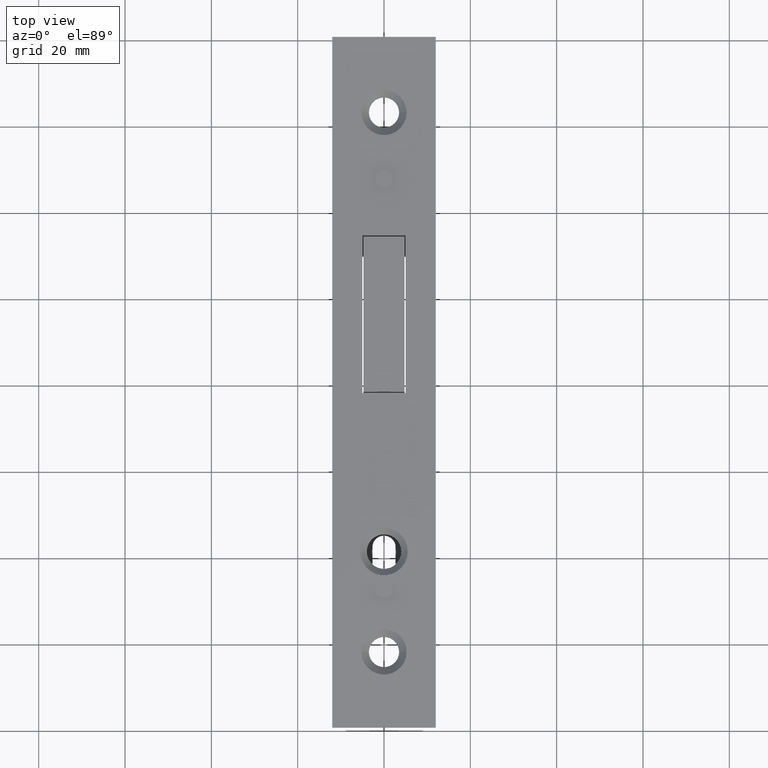
[diagram: clean part render]
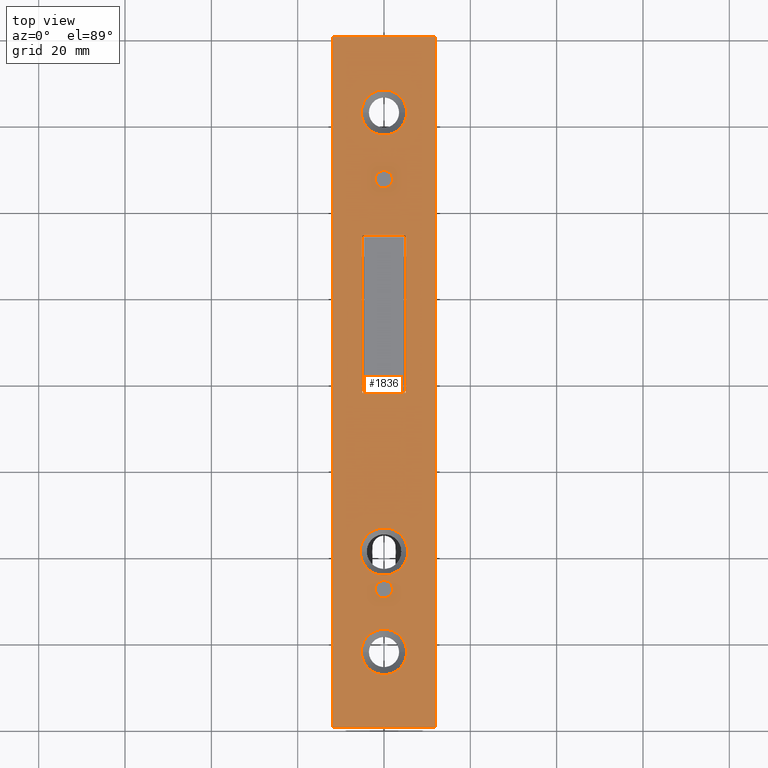
[diagram: same view with one face highlighted and labeled with its STEP entity id]
A machine part, top view. The second image highlights one B-rep face of the part: STEP entity #1836.
In plain terms, the highlighted planar face has unit normal (-0, 0, 1).
Its self-contained STEP definition (entity closure, byte-faithful):
#33 = DIRECTION ( 'NONE',  ( 1.000000000000000000, 0.000000000000000000, 0.000000000000000000 ) ) ;
#148 = CARTESIAN_POINT ( 'NONE',  ( -1.040834085586084257E-14, -39.25000000000000711, 3.000000000000000000 ) ) ;
#207 = DIRECTION ( 'NONE',  ( -0.000000000000000000, 0.000000000000000000, 1.000000000000000000 ) ) ;
#239 = DIRECTION ( 'NONE',  ( 0.000000000000000000, 0.000000000000000000, 1.000000000000000000 ) ) ;
#260 = ORIENTED_EDGE ( 'NONE', *, *, #14203, .F. ) ;
#469 = EDGE_LOOP ( 'NONE', ( #9762, #9043 ) ) ;
#878 = ORIENTED_EDGE ( 'NONE', *, *, #15162, .F. ) ;
#892 = EDGE_CURVE ( 'NONE', #12134, #1654, #14362, .T. ) ;
#906 = ORIENTED_EDGE ( 'NONE', *, *, #2468, .T. ) ;
#949 = VERTEX_POINT ( 'NONE', #4127 ) ;
#1146 = DIRECTION ( 'NONE',  ( 1.000000000000000000, 0.000000000000000000, 0.000000000000000000 ) ) ;
#1241 = ORIENTED_EDGE ( 'NONE', *, *, #6608, .F. ) ;
#1249 = DIRECTION ( 'NONE',  ( 0.000000000000000000, 0.000000000000000000, 1.000000000000000000 ) ) ;
#1322 = CARTESIAN_POINT ( 'NONE',  ( 1.561424668912875348E-14, 62.50000000000000000, 3.000000000000000000 ) ) ;
#1379 = LINE ( 'NONE', #3114, #9685 ) ;
#1505 = EDGE_LOOP ( 'NONE', ( #6075, #15910 ) ) ;
#1629 = VERTEX_POINT ( 'NONE', #7086 ) ;
#1654 = VERTEX_POINT ( 'NONE', #9965 ) ;
#1795 = AXIS2_PLACEMENT_3D ( 'NONE', #8319, #207, #4109 ) ;
#1804 = EDGE_LOOP ( 'NONE', ( #878, #260 ) ) ;
#1836 = ADVANCED_FACE ( 'NONE', ( #10288, #13704, #15806, #6225, #11126, #9867, #7502 ), #2995, .T. ) ;
#2041 = VERTEX_POINT ( 'NONE', #10094 ) ;
#2073 = CARTESIAN_POINT ( 'NONE',  ( 2.000000000000001776, -48.00000000000000000, 3.000000000000000000 ) ) ;
#2332 = VERTEX_POINT ( 'NONE', #2637 ) ;
#2468 = EDGE_CURVE ( 'NONE', #2332, #6261, #13891, .T. ) ;
#2574 = CARTESIAN_POINT ( 'NONE',  ( 1.561424668912875348E-14, -62.50000000000000000, 3.000000000000000000 ) ) ;
#2590 = AXIS2_PLACEMENT_3D ( 'NONE', #2574, #5231, #12185 ) ;
#2616 = DIRECTION ( 'NONE',  ( 1.000000000000000000, 0.000000000000000000, 0.000000000000000000 ) ) ;
#2634 = CARTESIAN_POINT ( 'NONE',  ( 1.561424668912875348E-14, -62.50000000000000000, 3.000000000000000000 ) ) ;
#2637 = CARTESIAN_POINT ( 'NONE',  ( 11.99999999999998579, 80.00000000000000000, 3.000000000000000000 ) ) ;
#2692 = VERTEX_POINT ( 'NONE', #11416 ) ;
#2840 = AXIS2_PLACEMENT_3D ( 'NONE', #5335, #1249, #2616 ) ;
#2842 = EDGE_CURVE ( 'NONE', #10231, #11692, #13672, .T. ) ;
#2995 = PLANE ( 'NONE',  #1795 ) ;
#2996 = CARTESIAN_POINT ( 'NONE',  ( 11.99999999999998579, 80.00000000000000000, 3.000000000000000000 ) ) ;
#3003 = DIRECTION ( 'NONE',  ( 1.000000000000000000, 0.000000000000000000, 0.000000000000000000 ) ) ;
#3085 = VECTOR ( 'NONE', #10852, 1000.000000000000000 ) ;
#3114 = CARTESIAN_POINT ( 'NONE',  ( -11.99999999999999112, -80.00000000000000000, 3.000000000000000000 ) ) ;
#3468 = VECTOR ( 'NONE', #7058, 1000.000000000000000 ) ;
#3548 = DIRECTION ( 'NONE',  ( 1.000000000000000000, 0.000000000000000000, 0.000000000000000000 ) ) ;
#3737 = ORIENTED_EDGE ( 'NONE', *, *, #10906, .F. ) ;
#4001 = DIRECTION ( 'NONE',  ( 0.000000000000000000, -0.000000000000000000, -1.000000000000000000 ) ) ;
#4092 = VECTOR ( 'NONE', #11067, 1000.000000000000000 ) ;
#4109 = DIRECTION ( 'NONE',  ( 1.000000000000000000, 0.000000000000000000, 0.000000000000000000 ) ) ;
#4127 = CARTESIAN_POINT ( 'NONE',  ( -5.249999999999986677, 62.50000000000000000, 3.000000000000000000 ) ) ;
#4139 = DIRECTION ( 'NONE',  ( 1.000000000000000000, 0.000000000000000000, 0.000000000000000000 ) ) ;
#4284 = EDGE_CURVE ( 'NONE', #949, #10618, #11618, .T. ) ;
#4466 = CARTESIAN_POINT ( 'NONE',  ( 4.999999999999970690, 33.99999999999998579, 3.000000000000000000 ) ) ;
#4622 = ORIENTED_EDGE ( 'NONE', *, *, #892, .F. ) ;
#4655 = EDGE_LOOP ( 'NONE', ( #14720, #3737, #4622, #11298 ) ) ;
#4803 = AXIS2_PLACEMENT_3D ( 'NONE', #8499, #11171, #15463 ) ;
#4826 = CIRCLE ( 'NONE', #2590, 5.250000000000001776 ) ;
#4847 = DIRECTION ( 'NONE',  ( 0.000000000000000000, 0.000000000000000000, 1.000000000000000000 ) ) ;
#4945 = AXIS2_PLACEMENT_3D ( 'NONE', #5010, #11683, #10323 ) ;
#5010 = CARTESIAN_POINT ( 'NONE',  ( -1.040834085586084257E-14, -39.25000000000000711, 3.000000000000000000 ) ) ;
#5211 = AXIS2_PLACEMENT_3D ( 'NONE', #1322, #5396, #33 ) ;
#5231 = DIRECTION ( 'NONE',  ( 0.000000000000000000, -0.000000000000000000, -1.000000000000000000 ) ) ;
#5335 = CARTESIAN_POINT ( 'NONE',  ( 0.000000000000000000, 47.00000000000000000, 3.000000000000000000 ) ) ;
#5396 = DIRECTION ( 'NONE',  ( 0.000000000000000000, -0.000000000000000000, -1.000000000000000000 ) ) ;
#5521 = CARTESIAN_POINT ( 'NONE',  ( -12.00000000000001066, 80.00000000000000000, 3.000000000000000000 ) ) ;
#5569 = CIRCLE ( 'NONE', #16601, 5.250000000000001776 ) ;
#5579 = CARTESIAN_POINT ( 'NONE',  ( 2.000000000000002220, 47.00000000000000000, 3.000000000000000000 ) ) ;
#6075 = ORIENTED_EDGE ( 'NONE', *, *, #9094, .T. ) ;
#6162 = ORIENTED_EDGE ( 'NONE', *, *, #15684, .T. ) ;
#6225 = FACE_BOUND ( 'NONE', #469, .T. ) ;
#6261 = VERTEX_POINT ( 'NONE', #5521 ) ;
#6537 = CARTESIAN_POINT ( 'NONE',  ( -5.000000000000029310, 33.99999999999998579, 3.000000000000000000 ) ) ;
#6608 = EDGE_CURVE ( 'NONE', #11692, #10231, #7158, .T. ) ;
#6789 = DIRECTION ( 'NONE',  ( 0.000000000000000000, -0.000000000000000000, -1.000000000000000000 ) ) ;
#6814 = EDGE_CURVE ( 'NONE', #12453, #2041, #16743, .T. ) ;
#6846 = ORIENTED_EDGE ( 'NONE', *, *, #10426, .T. ) ;
#6865 = VECTOR ( 'NONE', #8302, 1000.000000000000000 ) ;
#7058 = DIRECTION ( 'NONE',  ( 1.000000000000000000, 0.000000000000000000, 0.000000000000000000 ) ) ;
#7086 = CARTESIAN_POINT ( 'NONE',  ( -5.249999999999986677, -62.50000000000000000, 3.000000000000000000 ) ) ;
#7141 = ORIENTED_EDGE ( 'NONE', *, *, #2842, .F. ) ;
#7158 = CIRCLE ( 'NONE', #10763, 2.000000000000002220 ) ;
#7175 = ORIENTED_EDGE ( 'NONE', *, *, #6814, .T. ) ;
#7502 = FACE_OUTER_BOUND ( 'NONE', #13363, .T. ) ;
#7634 = AXIS2_PLACEMENT_3D ( 'NONE', #7685, #4847, #3548 ) ;
#7685 = CARTESIAN_POINT ( 'NONE',  ( 0.000000000000000000, -48.00000000000000000, 3.000000000000000000 ) ) ;
#7853 = CARTESIAN_POINT ( 'NONE',  ( -2.000000000000002220, 47.00000000000000000, 3.000000000000000000 ) ) ;
#7988 = LINE ( 'NONE', #12462, #15449 ) ;
#8035 = VERTEX_POINT ( 'NONE', #2073 ) ;
#8107 = CARTESIAN_POINT ( 'NONE',  ( -5.000000000000029310, 33.99999999999998579, 3.000000000000000000 ) ) ;
#8269 = CARTESIAN_POINT ( 'NONE',  ( -12.00000000000001066, 80.00000000000000000, 3.000000000000000000 ) ) ;
#8297 = EDGE_CURVE ( 'NONE', #8810, #13936, #1379, .T. ) ;
#8302 = DIRECTION ( 'NONE',  ( -1.000000000000000000, -0.000000000000000000, -0.000000000000000000 ) ) ;
#8319 = CARTESIAN_POINT ( 'NONE',  ( 0.000000000000000000, 0.000000000000000000, 3.000000000000000000 ) ) ;
#8365 = CARTESIAN_POINT ( 'NONE',  ( -5.000000000000024869, -2.500000000000009326, 3.000000000000000000 ) ) ;
#8499 = CARTESIAN_POINT ( 'NONE',  ( 0.000000000000000000, -48.00000000000000000, 3.000000000000000000 ) ) ;
#8647 = VERTEX_POINT ( 'NONE', #15880 ) ;
#8810 = VERTEX_POINT ( 'NONE', #17088 ) ;
#9043 = ORIENTED_EDGE ( 'NONE', *, *, #4284, .T. ) ;
#9094 = EDGE_CURVE ( 'NONE', #8647, #1629, #4826, .T. ) ;
#9229 = LINE ( 'NONE', #8365, #3468 ) ;
#9274 = VERTEX_POINT ( 'NONE', #4466 ) ;
#9312 = DIRECTION ( 'NONE',  ( 0.000000000000000000, -0.000000000000000000, -1.000000000000000000 ) ) ;
#9378 = CARTESIAN_POINT ( 'NONE',  ( 1.561424668912875348E-14, 62.50000000000000000, 3.000000000000000000 ) ) ;
#9480 = DIRECTION ( 'NONE',  ( 1.000000000000000000, 0.000000000000000000, 0.000000000000000000 ) ) ;
#9523 = DIRECTION ( 'NONE',  ( -1.188166764367676342E-16, 1.000000000000000000, -0.000000000000000000 ) ) ;
#9567 = EDGE_CURVE ( 'NONE', #9274, #12134, #10913, .T. ) ;
#9685 = VECTOR ( 'NONE', #3003, 1000.000000000000000 ) ;
#9709 = ORIENTED_EDGE ( 'NONE', *, *, #8297, .T. ) ;
#9762 = ORIENTED_EDGE ( 'NONE', *, *, #10137, .T. ) ;
#9867 = FACE_BOUND ( 'NONE', #4655, .T. ) ;
#9965 = CARTESIAN_POINT ( 'NONE',  ( -5.000000000000024869, -2.500000000000009326, 3.000000000000000000 ) ) ;
#10065 = CARTESIAN_POINT ( 'NONE',  ( -2.000000000000001776, -48.00000000000000000, 3.000000000000000000 ) ) ;
#10094 = CARTESIAN_POINT ( 'NONE',  ( -5.500000000000026645, -39.25000000000000711, 3.000000000000000000 ) ) ;
#10137 = EDGE_CURVE ( 'NONE', #10618, #949, #5569, .T. ) ;
#10176 = EDGE_CURVE ( 'NONE', #1629, #8647, #14970, .T. ) ;
#10231 = VERTEX_POINT ( 'NONE', #5579 ) ;
#10247 = EDGE_CURVE ( 'NONE', #2041, #12453, #11339, .T. ) ;
#10253 = ORIENTED_EDGE ( 'NONE', *, *, #10247, .T. ) ;
#10288 = FACE_BOUND ( 'NONE', #1804, .T. ) ;
#10323 = DIRECTION ( 'NONE',  ( 1.000000000000000000, 0.000000000000000000, 0.000000000000000000 ) ) ;
#10426 = EDGE_CURVE ( 'NONE', #13936, #2332, #14343, .T. ) ;
#10618 = VERTEX_POINT ( 'NONE', #11989 ) ;
#10763 = AXIS2_PLACEMENT_3D ( 'NONE', #12461, #239, #4139 ) ;
#10852 = DIRECTION ( 'NONE',  ( 1.188166764367676342E-16, -1.000000000000000000, 0.000000000000000000 ) ) ;
#10906 = EDGE_CURVE ( 'NONE', #1654, #2692, #9229, .T. ) ;
#10913 = LINE ( 'NONE', #11280, #6865 ) ;
#11067 = DIRECTION ( 'NONE',  ( -1.000000000000000000, -0.000000000000000000, -0.000000000000000000 ) ) ;
#11126 = FACE_BOUND ( 'NONE', #1505, .T. ) ;
#11171 = DIRECTION ( 'NONE',  ( 0.000000000000000000, 0.000000000000000000, 1.000000000000000000 ) ) ;
#11280 = CARTESIAN_POINT ( 'NONE',  ( -5.000000000000029310, 33.99999999999998579, 3.000000000000000000 ) ) ;
#11298 = ORIENTED_EDGE ( 'NONE', *, *, #9567, .F. ) ;
#11339 = CIRCLE ( 'NONE', #11588, 5.500000000000015987 ) ;
#11416 = CARTESIAN_POINT ( 'NONE',  ( 4.999999999999975131, -2.500000000000009326, 3.000000000000000000 ) ) ;
#11588 = AXIS2_PLACEMENT_3D ( 'NONE', #148, #6789, #9480 ) ;
#11618 = CIRCLE ( 'NONE', #5211, 5.250000000000001776 ) ;
#11683 = DIRECTION ( 'NONE',  ( 0.000000000000000000, -0.000000000000000000, -1.000000000000000000 ) ) ;
#11692 = VERTEX_POINT ( 'NONE', #7853 ) ;
#11694 = CARTESIAN_POINT ( 'NONE',  ( 5.500000000000005329, -39.25000000000000711, 3.000000000000000000 ) ) ;
#11989 = CARTESIAN_POINT ( 'NONE',  ( 5.250000000000017764, 62.50000000000000000, 3.000000000000000000 ) ) ;
#12040 = CARTESIAN_POINT ( 'NONE',  ( 12.00000000000000888, -80.00000000000000000, 3.000000000000000000 ) ) ;
#12121 = CARTESIAN_POINT ( 'NONE',  ( 4.999999999999970690, 33.99999999999998579, 3.000000000000000000 ) ) ;
#12134 = VERTEX_POINT ( 'NONE', #6537 ) ;
#12158 = AXIS2_PLACEMENT_3D ( 'NONE', #2634, #4001, #13517 ) ;
#12185 = DIRECTION ( 'NONE',  ( 1.000000000000000000, 0.000000000000000000, 0.000000000000000000 ) ) ;
#12453 = VERTEX_POINT ( 'NONE', #11694 ) ;
#12461 = CARTESIAN_POINT ( 'NONE',  ( 0.000000000000000000, 47.00000000000000000, 3.000000000000000000 ) ) ;
#12462 = CARTESIAN_POINT ( 'NONE',  ( -12.00000000000001066, 80.00000000000000000, 3.000000000000000000 ) ) ;
#12834 = DIRECTION ( 'NONE',  ( 1.192622389734054877E-16, -1.000000000000000000, 0.000000000000000000 ) ) ;
#12995 = EDGE_CURVE ( 'NONE', #2692, #9274, #13402, .T. ) ;
#13363 = EDGE_LOOP ( 'NONE', ( #6846, #906, #6162, #9709 ) ) ;
#13402 = LINE ( 'NONE', #12121, #14053 ) ;
#13517 = DIRECTION ( 'NONE',  ( 1.000000000000000000, 0.000000000000000000, 0.000000000000000000 ) ) ;
#13671 = EDGE_LOOP ( 'NONE', ( #7175, #10253 ) ) ;
#13672 = CIRCLE ( 'NONE', #2840, 2.000000000000002220 ) ;
#13704 = FACE_BOUND ( 'NONE', #15049, .T. ) ;
#13872 = DIRECTION ( 'NONE',  ( -1.409462824231155764E-16, 1.000000000000000000, -0.000000000000000000 ) ) ;
#13891 = LINE ( 'NONE', #8269, #4092 ) ;
#13936 = VERTEX_POINT ( 'NONE', #12040 ) ;
#14053 = VECTOR ( 'NONE', #9523, 1000.000000000000000 ) ;
#14203 = EDGE_CURVE ( 'NONE', #8035, #16781, #16333, .T. ) ;
#14343 = LINE ( 'NONE', #2996, #16662 ) ;
#14362 = LINE ( 'NONE', #8107, #3085 ) ;
#14720 = ORIENTED_EDGE ( 'NONE', *, *, #12995, .F. ) ;
#14970 = CIRCLE ( 'NONE', #12158, 5.250000000000001776 ) ;
#15049 = EDGE_LOOP ( 'NONE', ( #1241, #7141 ) ) ;
#15162 = EDGE_CURVE ( 'NONE', #16781, #8035, #17383, .T. ) ;
#15449 = VECTOR ( 'NONE', #12834, 1000.000000000000000 ) ;
#15463 = DIRECTION ( 'NONE',  ( 1.000000000000000000, 0.000000000000000000, 0.000000000000000000 ) ) ;
#15684 = EDGE_CURVE ( 'NONE', #6261, #8810, #7988, .T. ) ;
#15806 = FACE_BOUND ( 'NONE', #13671, .T. ) ;
#15880 = CARTESIAN_POINT ( 'NONE',  ( 5.250000000000017764, -62.50000000000000000, 3.000000000000000000 ) ) ;
#15910 = ORIENTED_EDGE ( 'NONE', *, *, #10176, .T. ) ;
#16333 = CIRCLE ( 'NONE', #7634, 2.000000000000001776 ) ;
#16601 = AXIS2_PLACEMENT_3D ( 'NONE', #9378, #9312, #1146 ) ;
#16662 = VECTOR ( 'NONE', #13872, 1000.000000000000000 ) ;
#16743 = CIRCLE ( 'NONE', #4945, 5.500000000000015987 ) ;
#16781 = VERTEX_POINT ( 'NONE', #10065 ) ;
#17088 = CARTESIAN_POINT ( 'NONE',  ( -11.99999999999999112, -80.00000000000000000, 3.000000000000000000 ) ) ;
#17383 = CIRCLE ( 'NONE', #4803, 2.000000000000001776 ) ;